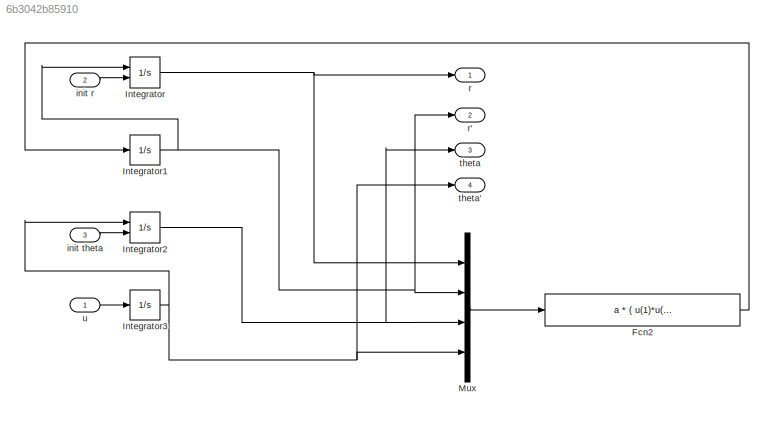
MODEL slx_6b3042b85910
KIND model
BLOCK [Fcn] Fcn2
  Expr = a * ( u(1)*u(4)*u(4) - b * sin(u(3)) )
BLOCK [Integrator] Integrator
  InitialConditionSource = external
  Ports = [2, 1]
BLOCK [Integrator] Integrator1
  Ports = [1, 1]
BLOCK [Integrator] Integrator2
  InitialConditionSource = external
  Ports = [2, 1]
BLOCK [Integrator] Integrator3
  Ports = [1, 1]
BLOCK [Mux] Mux
  DisplayOption = bar
  Ports = [4, 1]
BLOCK [Inport] init r
  IconDisplay = Port number
  Port = 2
BLOCK [Inport] init theta
  IconDisplay = Port number
  Port = 3
BLOCK [Outport] r
  IconDisplay = Port number
BLOCK [Outport] r'
  IconDisplay = Port number
  Port = 2
BLOCK [Outport] theta
  IconDisplay = Port number
  Port = 3
BLOCK [Outport] theta'
  IconDisplay = Port number
  Port = 4
BLOCK [Inport] u
  IconDisplay = Port number
LINE Fcn2:1 -> Integrator1:1
NET Integrator1:1 -> Integrator:1, Mux:2, r':1
NET Integrator2:1 -> Mux:3, theta:1
NET Integrator3:1 -> Integrator2:1, Mux:4, theta':1
NET Integrator:1 -> Mux:1, r:1
LINE Mux:1 -> Fcn2:1
LINE init r:1 -> Integrator:2
LINE init theta:1 -> Integrator2:2
LINE u:1 -> Integrator3:1
note: NET lines group one-source signal fan-out (src -> all destinations, sorted); 1:1 wires keep LINE
